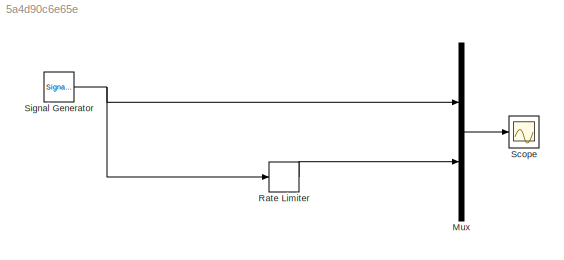
MODEL slx_5a4d90c6e65e
KIND model
CONFIG AbsTol = auto
CONFIG EnableMultiTasking = off
CONFIG FixedStep = 0.02
CONFIG MaxStep = auto
CONFIG MinStep = auto
CONFIG RelTol = 1e-3
CONFIG SampleTimeConstraint = Unconstrained
CONFIG Solver = FixedStepAuto
CONFIG SolverName = FixedStepAuto
CONFIG StartTime = 0.0
CONFIG StopTime = 10.0
BLOCK [Mux] Mux
  DisplayOption = bar
  Inputs = 2
  Ports = [2, 1]
BLOCK [RateLimiter] Rate Limiter
  FallingSlewLimit = -40
  RisingSlewLimit = 40
  SampleTimeMode = inherited
BLOCK [Scope] Scope
  Floating = off
  NumInputPorts = 1
  Ports = [1]
  ScopeSpecificationString = Simulink.scopes.TimeScopeBlockCfg('CurrentConfiguration', extmgr.ConfigurationSet(extmgr.Configuration('Core','General UI',true),extmgr.Configuration('Core','Source UI',true),extmgr.Configuration('Sources','WiredSimulink',true),extmgr.Configuration('Visuals','Time Domain',true,'SerializedDisplays',{struct('MinYLimReal','-12.47533','MaxYLimReal','12.47533','YLabelReal','','MinYLimMag','0.00000','Ma...<+1412ch>
BLOCK [SignalGenerator] Signal Generator
  Amplitude = 10
  Ports = [0, 1]
LINE Mux:1 -> Scope:1
LINE Rate Limiter:1 -> Mux:2
NET Signal Generator:1 -> Mux:1, Rate Limiter:1
note: NET lines group one-source signal fan-out (src -> all destinations, sorted); 1:1 wires keep LINE
